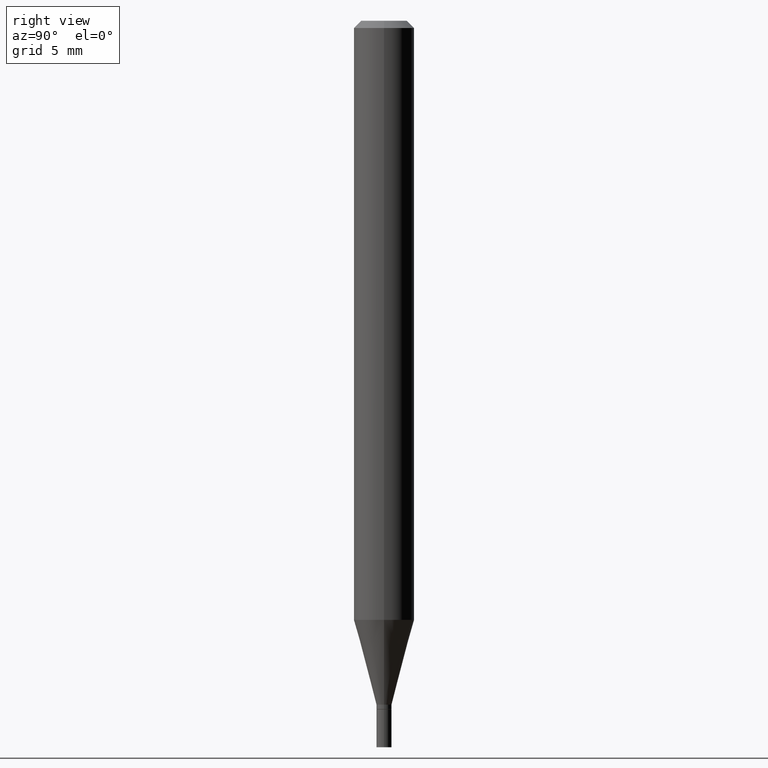
[diagram: clean part render]
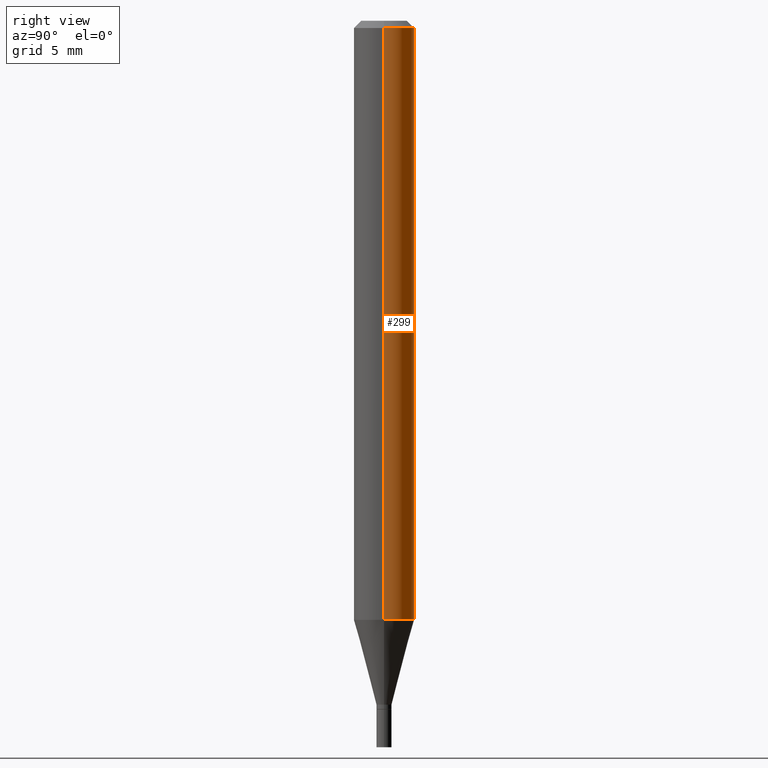
[diagram: same view with one face highlighted and labeled with its STEP entity id]
A machine part, right view. The second image highlights one B-rep face of the part: STEP entity #299.
In plain terms, the highlighted cylindrical surface (edge-blend (fillet) strip) has radius 1.5875 mm, axis along (-0, 0, 1).
Its self-contained STEP definition (entity closure, byte-faithful):
#33 = CARTESIAN_POINT ( 'NONE',  ( 3.024963765565350895E-29, -4.318846558760209820E-15, -1.236966817125020102 ) ) ;
#36 = CARTESIAN_POINT ( 'NONE',  ( -0.06250000000000000000, -3.874757348910146415E-15, -1.236966817125020102 ) ) ;
#52 = CARTESIAN_POINT ( 'NONE',  ( 0.06250000000000000000, -4.755281726115601490E-15, -1.236966817125020102 ) ) ;
#65 = CIRCLE ( 'NONE', #213, 0.06250000000000000000 ) ;
#79 = CARTESIAN_POINT ( 'NONE',  ( 0.000000000000000000, 0.000000000000000000, 0.000000000000000000 ) ) ;
#80 = ORIENTED_EDGE ( 'NONE', *, *, #231, .F. ) ;
#95 = CIRCLE ( 'NONE', #236, 0.06250000000000001388 ) ;
#98 = ORIENTED_EDGE ( 'NONE', *, *, #172, .T. ) ;
#172 = EDGE_CURVE ( 'NONE', #410, #197, #65, .T. ) ;
#182 = LINE ( 'NONE', #435, #222 ) ;
#186 = DIRECTION ( 'NONE',  ( 1.000000000000000000, -6.982962677686267499E-15, 0.000000000000000000 ) ) ;
#197 = VERTEX_POINT ( 'NONE', #36 ) ;
#206 = DIRECTION ( 'NONE',  ( 1.000000000000000000, -6.982962677686262766E-15, 0.000000000000000000 ) ) ;
#213 = AXIS2_PLACEMENT_3D ( 'NONE', #33, #319, #206 ) ;
#219 = DIRECTION ( 'NONE',  ( -2.445468806185136877E-29, 3.491481338843145188E-15, 1.000000000000000000 ) ) ;
#220 = VECTOR ( 'NONE', #219, 39.37007874015748143 ) ;
#222 = VECTOR ( 'NONE', #325, 39.37007874015748143 ) ;
#224 = VERTEX_POINT ( 'NONE', #297 ) ;
#225 = DIRECTION ( 'NONE',  ( -2.445468806185136597E-29, 3.491481338843145583E-15, 1.000000000000000000 ) ) ;
#231 = EDGE_CURVE ( 'NONE', #410, #453, #405, .T. ) ;
#236 = AXIS2_PLACEMENT_3D ( 'NONE', #398, #328, #186 ) ;
#239 = CARTESIAN_POINT ( 'NONE',  ( 0.06250000000000001388, -4.888073874380389458E-16, -0.01499999999999999944 ) ) ;
#257 = EDGE_CURVE ( 'NONE', #453, #224, #95, .T. ) ;
#292 = FACE_OUTER_BOUND ( 'NONE', #340, .T. ) ;
#297 = CARTESIAN_POINT ( 'NONE',  ( -0.06250000000000002776, -1.741520179571366031E-15, -0.01499999999999999944 ) ) ;
#299 = ADVANCED_FACE ( 'NONE', ( #292 ), #332, .T. ) ;
#315 = EDGE_CURVE ( 'NONE', #197, #224, #182, .T. ) ;
#319 = DIRECTION ( 'NONE',  ( -2.445468806185136597E-29, 3.491481338843145583E-15, 1.000000000000000000 ) ) ;
#325 = DIRECTION ( 'NONE',  ( -2.445468806185136877E-29, 3.491481338843145188E-15, 1.000000000000000000 ) ) ;
#328 = DIRECTION ( 'NONE',  ( -2.445468806185136597E-29, 3.491481338843145583E-15, 1.000000000000000000 ) ) ;
#332 = CYLINDRICAL_SURFACE ( 'NONE', #424, 0.06250000000000001388 ) ;
#338 = ORIENTED_EDGE ( 'NONE', *, *, #257, .F. ) ;
#340 = EDGE_LOOP ( 'NONE', ( #98, #343, #338, #80 ) ) ;
#343 = ORIENTED_EDGE ( 'NONE', *, *, #315, .T. ) ;
#368 = CARTESIAN_POINT ( 'NONE',  ( 0.06250000000000001388, -4.364351673553917187E-16, 3.047610484872460221E-30 ) ) ;
#398 = CARTESIAN_POINT ( 'NONE',  ( 3.668203209277705088E-31, -5.237222008264718399E-17, -0.01499999999999999944 ) ) ;
#405 = LINE ( 'NONE', #368, #220 ) ;
#410 = VERTEX_POINT ( 'NONE', #52 ) ;
#424 = AXIS2_PLACEMENT_3D ( 'NONE', #79, #225, #437 ) ;
#435 = CARTESIAN_POINT ( 'NONE',  ( -0.06250000000000001388, 4.440892098500627148E-16, -3.074334431409316814E-30 ) ) ;
#437 = DIRECTION ( 'NONE',  ( 1.000000000000000000, -6.982962677686265922E-15, 4.876176775795935232E-29 ) ) ;
#453 = VERTEX_POINT ( 'NONE', #239 ) ;